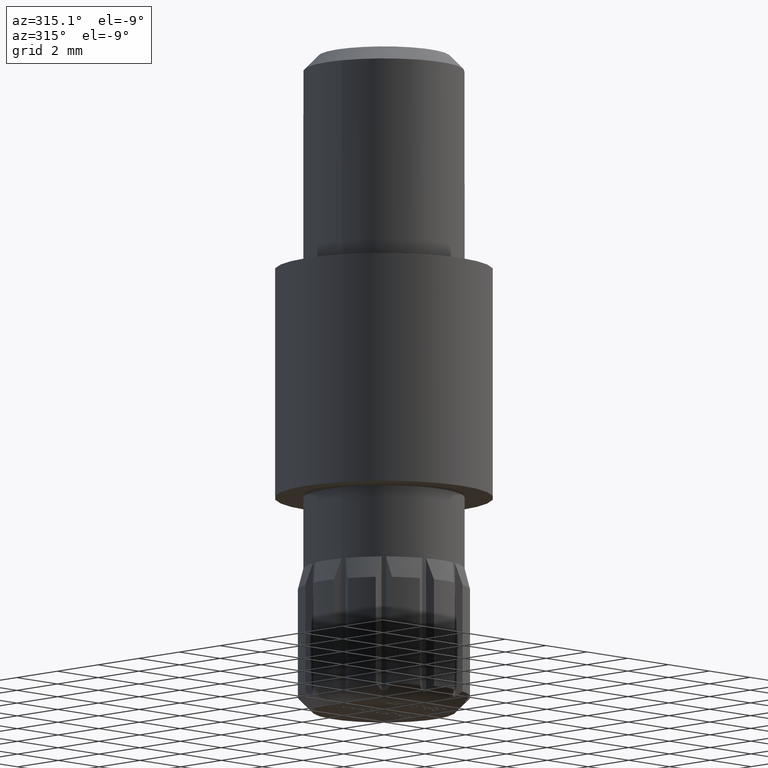
[diagram: clean part render]
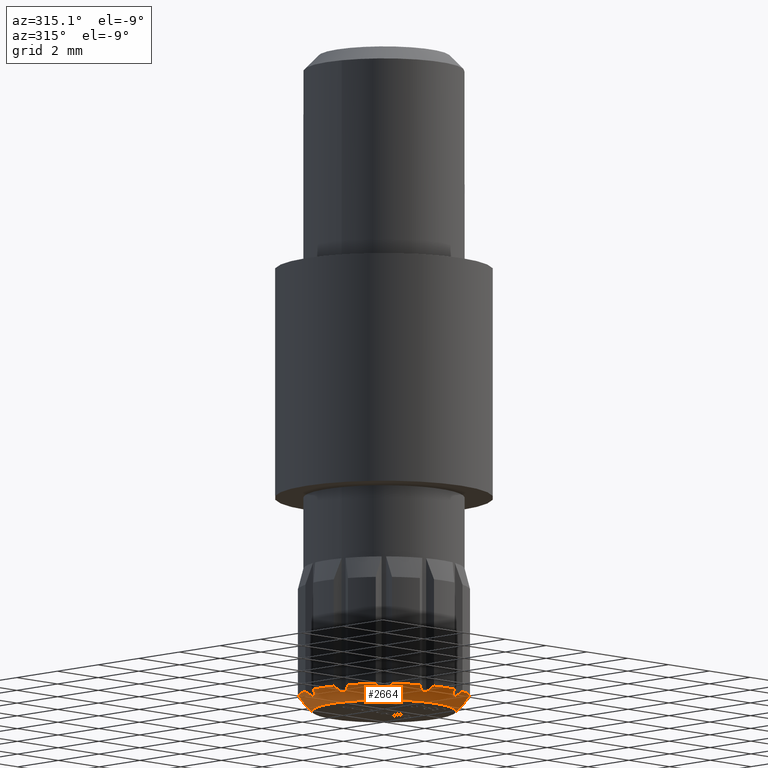
[diagram: same view with one face highlighted and labeled with its STEP entity id]
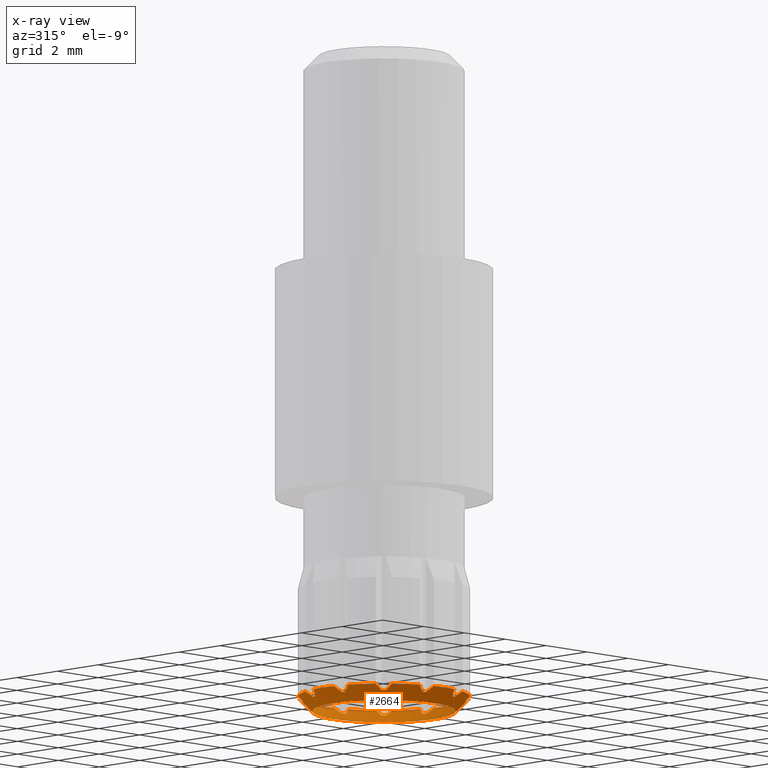
[diagram: x-ray of the same camera — body ghosted, the highlighted face saturated]
A machine part, auxiliary view. The second image highlights one B-rep face of the part: STEP entity #2664.
The next image is the same camera in x-ray: the body ghosted, the highlighted face saturated — about 4% of this face is hidden behind the body in this view.
In plain terms, the highlighted conical surface has half-angle 45 deg.
Its self-contained STEP definition (entity closure, byte-faithful):
#25 = DIRECTION ( 'NONE',  ( -1.000000000000000000, 0.000000000000000000, 0.000000000000000000 ) ) ;
#29 = DIRECTION ( 'NONE',  ( 0.000000000000000000, 0.000000000000000000, 1.000000000000000000 ) ) ;
#64 = DIRECTION ( 'NONE',  ( 1.000000000000000000, 0.000000000000000000, 0.000000000000000000 ) ) ;
#92 = DIRECTION ( 'NONE',  ( 0.000000000000000000, 0.000000000000000000, 1.000000000000000000 ) ) ;
#136 = VERTEX_POINT ( 'NONE', #895 ) ;
#138 = CARTESIAN_POINT ( 'NONE',  ( -2.311737691489917257, -1.912032647667102125, 0.4999999999999998890 ) ) ;
#161 = CARTESIAN_POINT ( 'NONE',  ( -2.033627779027435523, 1.924670895599541076, 0.2999999999999996003 ) ) ;
#266 = VERTEX_POINT ( 'NONE', #11072 ) ;
#322 = VERTEX_POINT ( 'NONE', #9102 ) ;
#369 = DIRECTION ( 'NONE',  ( -1.000000000000000000, 0.000000000000000000, 0.000000000000000000 ) ) ;
#397 = EDGE_CURVE ( 'NONE', #1567, #9420, #885, .T. ) ;
#400 = VERTEX_POINT ( 'NONE', #6396 ) ;
#423 = EDGE_CURVE ( 'NONE', #400, #7540, #1827, .T. ) ;
#450 = CIRCLE ( 'NONE', #11537, 3.000000000000000000 ) ;
#463 = FACE_BOUND ( 'NONE', #12906, .T. ) ;
#509 = EDGE_CURVE ( 'NONE', #10461, #1372, #7693, .T. ) ;
#510 = CARTESIAN_POINT ( 'NONE',  ( 2.033627779027463056, 1.924670895599512654, 0.2999999999999999334 ) ) ;
#549 = DIRECTION ( 'NONE',  ( -0.000000000000000000, -0.000000000000000000, -1.000000000000000000 ) ) ;
#563 = CARTESIAN_POINT ( 'NONE',  ( -1.924670895599533749, -2.033627779027442628, 0.2999999999999996003 ) ) ;
#607 = DIRECTION ( 'NONE',  ( -1.000000000000000000, 0.000000000000000000, 0.000000000000000000 ) ) ;
#622 = ORIENTED_EDGE ( 'NONE', *, *, #10093, .T. ) ;
#714 = AXIS2_PLACEMENT_3D ( 'NONE', #12992, #11049, #11124 ) ;
#739 = EDGE_CURVE ( 'NONE', #8307, #10461, #2856, .T. ) ;
#785 = FACE_OUTER_BOUND ( 'NONE', #1688, .T. ) ;
#793 = B_SPLINE_CURVE_WITH_KNOTS ( 'NONE', 3,
 ( #9524, #7482, #6362, #4479 ),
 .UNSPECIFIED., .F., .F.,
 ( 4, 4 ),
 ( 2.954317623281936935E-07, 0.0003430852342952688135 ),
 .UNSPECIFIED. ) ;
#805 = CARTESIAN_POINT ( 'NONE',  ( 0.000000000000000000, 0.000000000000000000, 0.2999999999999996003 ) ) ;
#813 = CARTESIAN_POINT ( 'NONE',  ( -1.924670895599491116, 2.033627779027482596, 0.2999999999999996003 ) ) ;
#839 = ORIENTED_EDGE ( 'NONE', *, *, #9663, .T. ) ;
#845 = VERTEX_POINT ( 'NONE', #8130 ) ;
#863 = EDGE_CURVE ( 'NONE', #1183, #9894, #2571, .T. ) ;
#885 = B_SPLINE_CURVE_WITH_KNOTS ( 'NONE', 3,
 ( #12447, #8409, #7388, #7219 ),
 .UNSPECIFIED., .F., .F.,
 ( 4, 4 ),
 ( 2.803256453689943402E-07, 0.0003430701281783228346 ),
 .UNSPECIFIED. ) ;
#895 = CARTESIAN_POINT ( 'NONE',  ( -0.5000000000000000000, 2.958039891549808065, 0.4999999999999998890 ) ) ;
#903 = CARTESIAN_POINT ( 'NONE',  ( 0.6500000000000000222, -2.723508766279264304, 0.2999999999999998779 ) ) ;
#950 = CARTESIAN_POINT ( 'NONE',  ( 2.726817915829766736, -0.8821669342688581716, 0.3651688080806906878 ) ) ;
#1033 = EDGE_CURVE ( 'NONE', #5716, #4518, #7728, .T. ) ;
#1046 = CARTESIAN_POINT ( 'NONE',  ( -0.9644935406565242619, -2.769488470846273476, 0.4319807832766577871 ) ) ;
#1114 = DIRECTION ( 'NONE',  ( -1.000000000000000000, 0.000000000000000000, 0.000000000000000000 ) ) ;
#1151 = ORIENTED_EDGE ( 'NONE', *, *, #3732, .T. ) ;
#1155 = ORIENTED_EDGE ( 'NONE', *, *, #6188, .T. ) ;
#1158 = CARTESIAN_POINT ( 'NONE',  ( -2.880694141569243527, 0.5494683274286409347, 0.4319807832766575650 ) ) ;
#1183 = VERTEX_POINT ( 'NONE', #10016 ) ;
#1185 = CARTESIAN_POINT ( 'NONE',  ( -2.802577053737547619, -0.5994299824593982695, 0.3651688080806903547 ) ) ;
#1201 = CARTESIAN_POINT ( 'NONE',  ( 0.4999999999999998890, 2.958039891549808953, 0.4999999999999998890 ) ) ;
#1229 = ORIENTED_EDGE ( 'NONE', *, *, #7664, .T. ) ;
#1264 = ORIENTED_EDGE ( 'NONE', *, *, #8324, .F. ) ;
#1278 = EDGE_CURVE ( 'NONE', #9568, #9212, #5376, .T. ) ;
#1294 = VERTEX_POINT ( 'NONE', #138 ) ;
#1301 = CARTESIAN_POINT ( 'NONE',  ( -2.683627779027448756, 0.7988378706797785167, 0.2999999999999998224 ) ) ;
#1305 = CARTESIAN_POINT ( 'NONE',  ( 0.000000000000000000, 0.000000000000000000, 0.4999999999999998890 ) ) ;
#1319 = AXIS2_PLACEMENT_3D ( 'NONE', #4536, #549, #4573 ) ;
#1327 = CARTESIAN_POINT ( 'NONE',  ( 2.311737691489891056, -1.912032647667133878, 0.4999999999999998890 ) ) ;
#1372 = VERTEX_POINT ( 'NONE', #6410 ) ;
#1382 = CARTESIAN_POINT ( 'NONE',  ( -0.7988378706797689688, -2.683627779027451865, 0.3000000000000002109 ) ) ;
#1457 = ORIENTED_EDGE ( 'NONE', *, *, #11759, .T. ) ;
#1567 = VERTEX_POINT ( 'NONE', #11879 ) ;
#1604 = CARTESIAN_POINT ( 'NONE',  ( 2.802577053737543622, 0.5994299824594178094, 0.3651688080806900771 ) ) ;
#1627 = CARTESIAN_POINT ( 'NONE',  ( 0.000000000000000000, 0.000000000000000000, 0.4999999999999998890 ) ) ;
#1628 = VERTEX_POINT ( 'NONE', #10433 ) ;
#1688 = EDGE_LOOP ( 'NONE', ( #4123, #8915, #2961, #10335, #1457, #1264, #2168, #1155, #622, #5712, #3045, #10831, #1229, #6711, #8760, #12933, #6948, #4449, #12082, #3360, #11396, #7422, #7980, #10645, #4058, #4902, #11179, #6736, #12927, #10010, #5581, #5202, #6307, #5379, #2180, #8973, #1775, #7531, #7360, #12801, #1151, #3012, #3680, #10364, #12742, #9874, #9235, #839 ) ) ;
#1730 = EDGE_CURVE ( 'NONE', #12413, #4518, #3264, .T. ) ;
#1740 = EDGE_CURVE ( 'NONE', #7067, #1628, #7870, .T. ) ;
#1751 = VERTEX_POINT ( 'NONE', #6315 ) ;
#1755 = CARTESIAN_POINT ( 'NONE',  ( 2.769488470846283690, 0.9644935406564953961, 0.4319807832766576761 ) ) ;
#1775 = ORIENTED_EDGE ( 'NONE', *, *, #1278, .T. ) ;
#1800 = EDGE_CURVE ( 'NONE', #4689, #9440, #12210, .T. ) ;
#1827 = B_SPLINE_CURVE_WITH_KNOTS ( 'NONE', 3,
 ( #7307, #1185, #5222, #8318 ),
 .UNSPECIFIED., .F., .F.,
 ( 4, 4 ),
 ( 2.889840042084965281E-07, 0.0003430787865371480450 ),
 .UNSPECIFIED. ) ;
#1830 = EDGE_CURVE ( 'NONE', #3579, #136, #2165, .T. ) ;
#1863 = CARTESIAN_POINT ( 'NONE',  ( -2.958039891549802736, 0.5000000000000307532, 0.4999999999999998890 ) ) ;
#1890 = VERTEX_POINT ( 'NONE', #12823 ) ;
#1914 = CARTESIAN_POINT ( 'NONE',  ( 1.916200600912734808, -2.220020143417681613, 0.4319807832766577316 ) ) ;
#1967 = DIRECTION ( 'NONE',  ( -1.000000000000000000, 0.000000000000000000, 0.000000000000000000 ) ) ;
#1983 = CARTESIAN_POINT ( 'NONE',  ( -2.723508766279257198, 0.6500000000000284439, 0.2999999999999996003 ) ) ;
#1991 = DIRECTION ( 'NONE',  ( 0.000000000000000000, 0.000000000000000000, 1.000000000000000000 ) ) ;
#2043 = CARTESIAN_POINT ( 'NONE',  ( 0.9644935406565046110, 2.769488470846280137, 0.4319807832766576206 ) ) ;
#2106 = DIRECTION ( 'NONE',  ( 1.000000000000000000, 0.000000000000000000, 0.000000000000000000 ) ) ;
#2120 = DIRECTION ( 'NONE',  ( -1.000000000000000000, 0.000000000000000000, 0.000000000000000000 ) ) ;
#2154 = EDGE_CURVE ( 'NONE', #845, #845, #12317, .T. ) ;
#2157 = AXIS2_PLACEMENT_3D ( 'NONE', #10137, #7941, #4139 ) ;
#2158 = CIRCLE ( 'NONE', #12566, 2.799999999999999822 ) ;
#2165 = B_SPLINE_CURVE_WITH_KNOTS ( 'NONE', 3,
 ( #3624, #2563, #3578, #5647 ),
 .UNSPECIFIED., .F., .F.,
 ( 4, 4 ),
 ( 2.889840042080258425E-07, 0.0003430787865371479365 ),
 .UNSPECIFIED. ) ;
#2168 = ORIENTED_EDGE ( 'NONE', *, *, #5340, .T. ) ;
#2170 = CARTESIAN_POINT ( 'NONE',  ( 1.916200600912750351, 2.220020143417667402, 0.4319807832766578426 ) ) ;
#2180 = ORIENTED_EDGE ( 'NONE', *, *, #423, .T. ) ;
#2187 = CARTESIAN_POINT ( 'NONE',  ( -0.7988378706797126805, 2.683627779027468296, 0.2999999999999998224 ) ) ;
#2198 = CARTESIAN_POINT ( 'NONE',  ( -0.6499999999999999112, -2.723508766279263860, 0.2999999999999996003 ) ) ;
#2287 = CIRCLE ( 'NONE', #4077, 3.000000000000000000 ) ;
#2307 = CIRCLE ( 'NONE', #1319, 3.000000000000000000 ) ;
#2403 = AXIS2_PLACEMENT_3D ( 'NONE', #4198, #8133, #2120 ) ;
#2471 = CARTESIAN_POINT ( 'NONE',  ( -0.5994299824594278014, -2.802577053737541402, 0.3651688080806904102 ) ) ;
#2474 = CIRCLE ( 'NONE', #3535, 3.000000000000000000 ) ;
#2491 = VERTEX_POINT ( 'NONE', #510 ) ;
#2549 = CARTESIAN_POINT ( 'NONE',  ( 0.000000000000000000, 0.000000000000000000, 0.2999999999999996003 ) ) ;
#2563 = CARTESIAN_POINT ( 'NONE',  ( -0.5994299824594279125, 2.802577053737540957, 0.3651688080806900771 ) ) ;
#2571 = B_SPLINE_CURVE_WITH_KNOTS ( 'NONE', 3,
 ( #9603, #12693, #12519, #563 ),
 .UNSPECIFIED., .F., .F.,
 ( 4, 4 ),
 ( 2.491383796159258994E-07, 0.0003430389409125962543 ),
 .UNSPECIFIED. ) ;
#2608 = CARTESIAN_POINT ( 'NONE',  ( 0.8821669342688298610, -2.726817915829775618, 0.3651688080806902437 ) ) ;
#2651 = CARTESIAN_POINT ( 'NONE',  ( 2.958039891549809841, 0.4999999999999893974, 0.4999999999999998890 ) ) ;
#2655 = EDGE_CURVE ( 'NONE', #9440, #6277, #11665, .T. ) ;
#2664 = ADVANCED_FACE ( 'NONE', ( #785, #463 ), #5974, .T. ) ;
#2699 = AXIS2_PLACEMENT_3D ( 'NONE', #7069, #1991, #11133 ) ;
#2702 = ORIENTED_EDGE ( 'NONE', *, *, #2154, .F. ) ;
#2712 = VERTEX_POINT ( 'NONE', #1201 ) ;
#2782 = VERTEX_POINT ( 'NONE', #4354 ) ;
#2856 = CIRCLE ( 'NONE', #2403, 3.000000000000000000 ) ;
#2886 = CARTESIAN_POINT ( 'NONE',  ( 2.683627779027459859, 0.7988378706797408801, 0.2999999999999996003 ) ) ;
#2890 = CARTESIAN_POINT ( 'NONE',  ( -1.920410119468668242, 2.127387933370367357, 0.3651688080806900216 ) ) ;
#2961 = ORIENTED_EDGE ( 'NONE', *, *, #5410, .T. ) ;
#3012 = ORIENTED_EDGE ( 'NONE', *, *, #6754, .F. ) ;
#3027 = AXIS2_PLACEMENT_3D ( 'NONE', #805, #5874, #3713 ) ;
#3045 = ORIENTED_EDGE ( 'NONE', *, *, #1800, .T. ) ;
#3093 = CARTESIAN_POINT ( 'NONE',  ( 1.912032647667126106, 2.311737691489897273, 0.4999999999999998890 ) ) ;
#3117 = CARTESIAN_POINT ( 'NONE',  ( 0.000000000000000000, 0.000000000000000000, 0.2999999999999996003 ) ) ;
#3259 = CIRCLE ( 'NONE', #4211, 2.799999999999999822 ) ;
#3264 = B_SPLINE_CURVE_WITH_KNOTS ( 'NONE', 3,
 ( #1327, #5343, #12399, #8369 ),
 .UNSPECIFIED., .F., .F.,
 ( 4, 4 ),
 ( 2.491383796164675240E-07, 0.0003430389409125971759 ),
 .UNSPECIFIED. ) ;
#3360 = ORIENTED_EDGE ( 'NONE', *, *, #739, .T. ) ;
#3374 = EDGE_CURVE ( 'NONE', #10664, #1183, #450, .T. ) ;
#3396 = AXIS2_PLACEMENT_3D ( 'NONE', #1627, #9669, #5546 ) ;
#3471 = CARTESIAN_POINT ( 'NONE',  ( -2.311737691489917257, -1.912032647667102125, 0.4999999999999998890 ) ) ;
#3497 = VERTEX_POINT ( 'NONE', #1382 ) ;
#3535 = AXIS2_PLACEMENT_3D ( 'NONE', #10814, #5850, #607 ) ;
#3578 = CARTESIAN_POINT ( 'NONE',  ( -0.5494683274286112917, 2.880694141569248856, 0.4319807832766576761 ) ) ;
#3579 = VERTEX_POINT ( 'NONE', #8627 ) ;
#3624 = CARTESIAN_POINT ( 'NONE',  ( -0.6499999999999999112, 2.723508766279263860, 0.2999999999999996003 ) ) ;
#3643 = AXIS2_PLACEMENT_3D ( 'NONE', #1305, #4281, #369 ) ;
#3671 = CARTESIAN_POINT ( 'NONE',  ( -1.046007243882648874, 2.811737691489913260, 0.4999999999999998890 ) ) ;
#3680 = ORIENTED_EDGE ( 'NONE', *, *, #4973, .T. ) ;
#3699 = AXIS2_PLACEMENT_3D ( 'NONE', #2549, #4464, #9596 ) ;
#3713 = DIRECTION ( 'NONE',  ( 1.000000000000000000, 0.000000000000000000, 0.000000000000000000 ) ) ;
#3732 = EDGE_CURVE ( 'NONE', #9662, #9634, #7292, .T. ) ;
#3750 = DIRECTION ( 'NONE',  ( 0.000000000000000000, 0.000000000000000000, 1.000000000000000000 ) ) ;
#3812 = CARTESIAN_POINT ( 'NONE',  ( 2.726817915829772065, 0.8821669342688396309, 0.3651688080806902437 ) ) ;
#3821 = EDGE_CURVE ( 'NONE', #9432, #10392, #9315, .T. ) ;
#3865 = CARTESIAN_POINT ( 'NONE',  ( -1.912032647667093910, 2.311737691489923918, 0.4999999999999998890 ) ) ;
#3897 = CARTESIAN_POINT ( 'NONE',  ( 0.7988378706797500950, 2.683627779027457194, 0.2999999999999997669 ) ) ;
#3964 = VERTEX_POINT ( 'NONE', #2187 ) ;
#3976 = CARTESIAN_POINT ( 'NONE',  ( 1.924670895599519538, 2.033627779027455507, 0.2999999999999996003 ) ) ;
#4024 = CARTESIAN_POINT ( 'NONE',  ( 0.000000000000000000, 0.000000000000000000, 0.4999999999999998890 ) ) ;
#4032 = CARTESIAN_POINT ( 'NONE',  ( -0.7988378706797689688, -2.683627779027451865, 0.3000000000000002109 ) ) ;
#4054 = CARTESIAN_POINT ( 'NONE',  ( 2.723508766279266524, 0.6499999999999904743, 0.2999999999999997113 ) ) ;
#4058 = ORIENTED_EDGE ( 'NONE', *, *, #6082, .T. ) ;
#4077 = AXIS2_PLACEMENT_3D ( 'NONE', #7912, #12904, #4900 ) ;
#4109 = B_SPLINE_CURVE_WITH_KNOTS ( 'NONE', 3,
 ( #1301, #4407, #6286, #8338 ),
 .UNSPECIFIED., .F., .F.,
 ( 4, 4 ),
 ( 2.742078407103692283E-07, 0.0003430640103736634292 ),
 .UNSPECIFIED. ) ;
#4115 = CARTESIAN_POINT ( 'NONE',  ( 0.000000000000000000, 0.000000000000000000, 0.2999999999999996003 ) ) ;
#4123 = ORIENTED_EDGE ( 'NONE', *, *, #9989, .T. ) ;
#4139 = DIRECTION ( 'NONE',  ( 1.000000000000000000, 0.000000000000000000, 0.000000000000000000 ) ) ;
#4154 = CARTESIAN_POINT ( 'NONE',  ( 0.000000000000000000, 0.000000000000000000, -1.169278378903498267E-16 ) ) ;
#4198 = CARTESIAN_POINT ( 'NONE',  ( 0.000000000000000000, 0.000000000000000000, 0.4999999999999998890 ) ) ;
#4206 = CIRCLE ( 'NONE', #5428, 3.000000000000000000 ) ;
#4211 = AXIS2_PLACEMENT_3D ( 'NONE', #7681, #11767, #4807 ) ;
#4239 = DIRECTION ( 'NONE',  ( -0.000000000000000000, -0.000000000000000000, -1.000000000000000000 ) ) ;
#4244 = CARTESIAN_POINT ( 'NONE',  ( -2.958039891549813838, -0.4999999999999698574, 0.4999999999999998890 ) ) ;
#4281 = DIRECTION ( 'NONE',  ( -0.000000000000000000, -0.000000000000000000, -1.000000000000000000 ) ) ;
#4341 = CARTESIAN_POINT ( 'NONE',  ( 0.5000000000000000000, -2.958039891549808065, 0.4999999999999998890 ) ) ;
#4354 = CARTESIAN_POINT ( 'NONE',  ( 2.683627779027459859, 0.7988378706797408801, 0.2999999999999996003 ) ) ;
#4364 = CIRCLE ( 'NONE', #6983, 2.799999999999999822 ) ;
#4407 = CARTESIAN_POINT ( 'NONE',  ( -2.726817915829760075, 0.8821669342688776005, 0.3651688080806905212 ) ) ;
#4418 = CARTESIAN_POINT ( 'NONE',  ( 1.912032647667110119, -2.311737691489910596, 0.4999999999999998890 ) ) ;
#4449 = ORIENTED_EDGE ( 'NONE', *, *, #1033, .F. ) ;
#4464 = DIRECTION ( 'NONE',  ( 0.000000000000000000, 0.000000000000000000, 1.000000000000000000 ) ) ;
#4479 = CARTESIAN_POINT ( 'NONE',  ( 2.723508766279261639, -0.6500000000000093481, 0.2999999999999996003 ) ) ;
#4511 = CIRCLE ( 'NONE', #3699, 2.799999999999999822 ) ;
#4518 = VERTEX_POINT ( 'NONE', #7379 ) ;
#4536 = CARTESIAN_POINT ( 'NONE',  ( 0.000000000000000000, 0.000000000000000000, 0.4999999999999998890 ) ) ;
#4553 = CIRCLE ( 'NONE', #714, 2.799999999999999822 ) ;
#4557 = CARTESIAN_POINT ( 'NONE',  ( 2.811737691489895052, -1.046007243882697058, 0.4999999999999998890 ) ) ;
#4573 = DIRECTION ( 'NONE',  ( -1.000000000000000000, 0.000000000000000000, 0.000000000000000000 ) ) ;
#4616 = CARTESIAN_POINT ( 'NONE',  ( 0.000000000000000000, 0.000000000000000000, 0.2999999999999996003 ) ) ;
#4618 = CARTESIAN_POINT ( 'NONE',  ( -0.9644935406564661973, 2.769488470846293460, 0.4319807832766580646 ) ) ;
#4672 = EDGE_CURVE ( 'NONE', #4689, #2782, #4553, .T. ) ;
#4689 = VERTEX_POINT ( 'NONE', #4054 ) ;
#4746 = VERTEX_POINT ( 'NONE', #5069 ) ;
#4770 = CARTESIAN_POINT ( 'NONE',  ( 1.924670895599505327, -2.033627779027469273, 0.2999999999999997669 ) ) ;
#4807 = DIRECTION ( 'NONE',  ( 1.000000000000000000, 0.000000000000000000, 0.000000000000000000 ) ) ;
#4816 = CARTESIAN_POINT ( 'NONE',  ( 2.958039891549809841, 0.4999999999999893974, 0.4999999999999998890 ) ) ;
#4886 = AXIS2_PLACEMENT_3D ( 'NONE', #7237, #12198, #1114 ) ;
#4900 = DIRECTION ( 'NONE',  ( -1.000000000000000000, 0.000000000000000000, 0.000000000000000000 ) ) ;
#4902 = ORIENTED_EDGE ( 'NONE', *, *, #6203, .F. ) ;
#4973 = EDGE_CURVE ( 'NONE', #10033, #5364, #7555, .T. ) ;
#5043 = CARTESIAN_POINT ( 'NONE',  ( -0.8821669342688681636, -2.726817915829763628, 0.3651688080806905767 ) ) ;
#5069 = CARTESIAN_POINT ( 'NONE',  ( -2.033627779027476379, -1.924670895599498444, 0.2999999999999999334 ) ) ;
#5202 = ORIENTED_EDGE ( 'NONE', *, *, #9546, .T. ) ;
#5222 = CARTESIAN_POINT ( 'NONE',  ( -2.880694141569255073, -0.5494683274285809826, 0.4319807832766578426 ) ) ;
#5297 = CARTESIAN_POINT ( 'NONE',  ( 1.046007243882687288, 2.811737691489899049, 0.4999999999999998890 ) ) ;
#5340 = EDGE_CURVE ( 'NONE', #2491, #1751, #9508, .T. ) ;
#5343 = CARTESIAN_POINT ( 'NONE',  ( 2.220020143417661629, -1.916200600912758123, 0.4319807832766582312 ) ) ;
#5364 = VERTEX_POINT ( 'NONE', #11420 ) ;
#5374 = CARTESIAN_POINT ( 'NONE',  ( 2.683627779027454974, -0.7988378706797596429, 0.3000000000000002665 ) ) ;
#5376 = B_SPLINE_CURVE_WITH_KNOTS ( 'NONE', 3,
 ( #9252, #1158, #8385, #10312 ),
 .UNSPECIFIED., .F., .F.,
 ( 4, 4 ),
 ( 2.954317623288225096E-07, 0.0003430852342952688677 ),
 .UNSPECIFIED. ) ;
#5379 = ORIENTED_EDGE ( 'NONE', *, *, #9488, .F. ) ;
#5410 = EDGE_CURVE ( 'NONE', #7067, #1890, #12561, .T. ) ;
#5428 = AXIS2_PLACEMENT_3D ( 'NONE', #5580, #8557, #9586 ) ;
#5460 = CARTESIAN_POINT ( 'NONE',  ( -2.311737691489876845, 1.912032647667150087, 0.4999999999999998890 ) ) ;
#5516 = CARTESIAN_POINT ( 'NONE',  ( 0.000000000000000000, 0.000000000000000000, 0.2999999999999996003 ) ) ;
#5522 = CARTESIAN_POINT ( 'NONE',  ( 0.9644935406564856262, -2.769488470846286798, 0.4319807832766576206 ) ) ;
#5539 = CARTESIAN_POINT ( 'NONE',  ( -1.046007243882648874, 2.811737691489913260, 0.4999999999999998890 ) ) ;
#5546 = DIRECTION ( 'NONE',  ( -1.000000000000000000, 0.000000000000000000, 0.000000000000000000 ) ) ;
#5580 = CARTESIAN_POINT ( 'NONE',  ( 0.000000000000000000, 0.000000000000000000, 0.4999999999999998890 ) ) ;
#5581 = ORIENTED_EDGE ( 'NONE', *, *, #8773, .T. ) ;
#5614 = AXIS2_PLACEMENT_3D ( 'NONE', #9975, #11937, #8850 ) ;
#5647 = CARTESIAN_POINT ( 'NONE',  ( -0.5000000000000000000, 2.958039891549808065, 0.4999999999999998890 ) ) ;
#5694 = CARTESIAN_POINT ( 'NONE',  ( 1.924670895599505327, -2.033627779027469273, 0.2999999999999997669 ) ) ;
#5696 = VERTEX_POINT ( 'NONE', #3671 ) ;
#5712 = ORIENTED_EDGE ( 'NONE', *, *, #4672, .F. ) ;
#5716 = VERTEX_POINT ( 'NONE', #5694 ) ;
#5850 = DIRECTION ( 'NONE',  ( -0.000000000000000000, -0.000000000000000000, -1.000000000000000000 ) ) ;
#5874 = DIRECTION ( 'NONE',  ( 0.000000000000000000, 0.000000000000000000, 1.000000000000000000 ) ) ;
#5900 = CIRCLE ( 'NONE', #2699, 2.799999999999999822 ) ;
#5927 = EDGE_CURVE ( 'NONE', #3497, #10664, #8106, .T. ) ;
#5963 = DIRECTION ( 'NONE',  ( -1.000000000000000000, 0.000000000000000000, 0.000000000000000000 ) ) ;
#5964 = AXIS2_PLACEMENT_3D ( 'NONE', #4024, #12123, #25 ) ;
#5974 = CONICAL_SURFACE ( 'NONE', #2157, 3.000000000000000000, 0.7853981633974479459 ) ;
#6043 = B_SPLINE_CURVE_WITH_KNOTS ( 'NONE', 3,
 ( #3093, #2170, #6349, #7380 ),
 .UNSPECIFIED., .F., .F.,
 ( 4, 4 ),
 ( 2.491383796159258994E-07, 0.0003430389409125966880 ),
 .UNSPECIFIED. ) ;
#6082 = EDGE_CURVE ( 'NONE', #266, #6320, #7175, .T. ) ;
#6086 = EDGE_CURVE ( 'NONE', #4746, #9894, #2158, .T. ) ;
#6101 = DIRECTION ( 'NONE',  ( -0.000000000000000000, -0.000000000000000000, -1.000000000000000000 ) ) ;
#6188 = EDGE_CURVE ( 'NONE', #1751, #7702, #2474, .T. ) ;
#6203 = EDGE_CURVE ( 'NONE', #3497, #6320, #3259, .T. ) ;
#6263 = EDGE_CURVE ( 'NONE', #11335, #10588, #12868, .T. ) ;
#6277 = VERTEX_POINT ( 'NONE', #8900 ) ;
#6286 = CARTESIAN_POINT ( 'NONE',  ( -2.769488470846269923, 0.9644935406565338099, 0.4319807832766576761 ) ) ;
#6307 = ORIENTED_EDGE ( 'NONE', *, *, #397, .T. ) ;
#6315 = CARTESIAN_POINT ( 'NONE',  ( 2.311737691489904378, 1.912032647667118335, 0.4999999999999998890 ) ) ;
#6320 = VERTEX_POINT ( 'NONE', #2198 ) ;
#6349 = CARTESIAN_POINT ( 'NONE',  ( 1.920410119468698218, 2.127387933370340267, 0.3651688080806899661 ) ) ;
#6362 = CARTESIAN_POINT ( 'NONE',  ( 2.802577053737539181, -0.5994299824594375714, 0.3651688080806904657 ) ) ;
#6364 = CARTESIAN_POINT ( 'NONE',  ( 2.033627779027463056, 1.924670895599512654, 0.2999999999999999334 ) ) ;
#6396 = CARTESIAN_POINT ( 'NONE',  ( -2.723508766279271409, -0.6499999999999714895, 0.2999999999999998779 ) ) ;
#6410 = CARTESIAN_POINT ( 'NONE',  ( 0.7988378706797313322, -2.683627779027462523, 0.2999999999999996003 ) ) ;
#6456 = AXIS2_PLACEMENT_3D ( 'NONE', #10475, #7480, #8496 ) ;
#6488 = CARTESIAN_POINT ( 'NONE',  ( 2.311737691489904378, 1.912032647667118335, 0.4999999999999998890 ) ) ;
#6523 = CARTESIAN_POINT ( 'NONE',  ( 0.7988378706797313322, -2.683627779027462523, 0.2999999999999996003 ) ) ;
#6540 = EDGE_CURVE ( 'NONE', #7540, #9568, #2307, .T. ) ;
#6568 = CARTESIAN_POINT ( 'NONE',  ( 1.912032647667126106, 2.311737691489897273, 0.4999999999999998890 ) ) ;
#6589 = CARTESIAN_POINT ( 'NONE',  ( 0.6499999999999999112, 2.723508766279263860, 0.2999999999999996003 ) ) ;
#6601 = DIRECTION ( 'NONE',  ( 1.000000000000000000, 0.000000000000000000, 0.000000000000000000 ) ) ;
#6623 = CARTESIAN_POINT ( 'NONE',  ( -2.033627779027476379, -1.924670895599498444, 0.2999999999999999334 ) ) ;
#6711 = ORIENTED_EDGE ( 'NONE', *, *, #7502, .F. ) ;
#6736 = ORIENTED_EDGE ( 'NONE', *, *, #3374, .T. ) ;
#6754 = EDGE_CURVE ( 'NONE', #10033, #9634, #7647, .T. ) ;
#6829 = CARTESIAN_POINT ( 'NONE',  ( 0.5994299824594276904, -2.802577053737540957, 0.3651688080806902992 ) ) ;
#6899 = DIRECTION ( 'NONE',  ( 1.000000000000000000, 0.000000000000000000, 0.000000000000000000 ) ) ;
#6919 = EDGE_CURVE ( 'NONE', #12166, #9212, #4364, .T. ) ;
#6948 = ORIENTED_EDGE ( 'NONE', *, *, #1730, .T. ) ;
#6983 = AXIS2_PLACEMENT_3D ( 'NONE', #4616, #11658, #8555 ) ;
#7067 = VERTEX_POINT ( 'NONE', #7627 ) ;
#7069 = CARTESIAN_POINT ( 'NONE',  ( 0.000000000000000000, 0.000000000000000000, 0.2999999999999996003 ) ) ;
#7090 = EDGE_CURVE ( 'NONE', #3579, #3964, #12084, .T. ) ;
#7092 = DIRECTION ( 'NONE',  ( -1.000000000000000000, 0.000000000000000000, 0.000000000000000000 ) ) ;
#7175 = B_SPLINE_CURVE_WITH_KNOTS ( 'NONE', 3,
 ( #12610, #10468, #2471, #10644 ),
 .UNSPECIFIED., .F., .F.,
 ( 4, 4 ),
 ( 2.954317623281304308E-07, 0.0003430852342952685425 ),
 .UNSPECIFIED. ) ;
#7219 = CARTESIAN_POINT ( 'NONE',  ( -2.683627779027465632, -0.7988378706797221174, 0.2999999999999996003 ) ) ;
#7237 = CARTESIAN_POINT ( 'NONE',  ( 0.000000000000000000, 0.000000000000000000, 0.4999999999999998890 ) ) ;
#7292 = B_SPLINE_CURVE_WITH_KNOTS ( 'NONE', 3,
 ( #11411, #10288, #12308, #161 ),
 .UNSPECIFIED., .F., .F.,
 ( 4, 4 ),
 ( 2.491383796164042612E-07, 0.0003430389409125965254 ),
 .UNSPECIFIED. ) ;
#7296 = CIRCLE ( 'NONE', #4886, 3.000000000000000000 ) ;
#7300 = CARTESIAN_POINT ( 'NONE',  ( 2.311737691489891056, -1.912032647667133878, 0.4999999999999998890 ) ) ;
#7307 = CARTESIAN_POINT ( 'NONE',  ( -2.723508766279271409, -0.6499999999999714895, 0.2999999999999998779 ) ) ;
#7360 = ORIENTED_EDGE ( 'NONE', *, *, #10821, .T. ) ;
#7379 = CARTESIAN_POINT ( 'NONE',  ( 2.033627779027448845, -1.924670895599526865, 0.2999999999999996003 ) ) ;
#7380 = CARTESIAN_POINT ( 'NONE',  ( 1.924670895599519538, 2.033627779027455507, 0.2999999999999996003 ) ) ;
#7388 = CARTESIAN_POINT ( 'NONE',  ( -2.726817915829778727, -0.8821669342688205351, 0.3651688080806901882 ) ) ;
#7392 = CARTESIAN_POINT ( 'NONE',  ( 2.127387933370347373, 1.920410119468690668, 0.3651688080806906322 ) ) ;
#7422 = ORIENTED_EDGE ( 'NONE', *, *, #8212, .F. ) ;
#7477 = CIRCLE ( 'NONE', #11068, 2.799999999999999822 ) ;
#7480 = DIRECTION ( 'NONE',  ( 0.000000000000000000, 0.000000000000000000, 1.000000000000000000 ) ) ;
#7482 = CARTESIAN_POINT ( 'NONE',  ( 2.880694141569247524, -0.5494683274286209507, 0.4319807832766580646 ) ) ;
#7502 = EDGE_CURVE ( 'NONE', #11335, #7710, #9690, .T. ) ;
#7531 = ORIENTED_EDGE ( 'NONE', *, *, #6919, .F. ) ;
#7537 = CARTESIAN_POINT ( 'NONE',  ( -2.220020143417687830, -1.916200600912727259, 0.4319807832766577316 ) ) ;
#7540 = VERTEX_POINT ( 'NONE', #4244 ) ;
#7555 = B_SPLINE_CURVE_WITH_KNOTS ( 'NONE', 3,
 ( #9833, #2890, #9877, #3865 ),
 .UNSPECIFIED., .F., .F.,
 ( 4, 4 ),
 ( 2.437016887059737188E-07, 0.0003430335042216859634 ),
 .UNSPECIFIED. ) ;
#7603 = EDGE_CURVE ( 'NONE', #10588, #12413, #10958, .T. ) ;
#7609 = CARTESIAN_POINT ( 'NONE',  ( 1.046007243882668414, -2.811737691489906155, 0.4999999999999998890 ) ) ;
#7627 = CARTESIAN_POINT ( 'NONE',  ( 0.7988378706797500950, 2.683627779027457194, 0.2999999999999997669 ) ) ;
#7647 = CIRCLE ( 'NONE', #10355, 2.799999999999999822 ) ;
#7664 = EDGE_CURVE ( 'NONE', #6277, #7710, #793, .T. ) ;
#7681 = CARTESIAN_POINT ( 'NONE',  ( 0.000000000000000000, 0.000000000000000000, 0.2999999999999996003 ) ) ;
#7693 = B_SPLINE_CURVE_WITH_KNOTS ( 'NONE', 3,
 ( #11558, #5522, #2608, #6523 ),
 .UNSPECIFIED., .F., .F.,
 ( 4, 4 ),
 ( 2.803256453694392972E-07, 0.0003430701281783235935 ),
 .UNSPECIFIED. ) ;
#7702 = VERTEX_POINT ( 'NONE', #8370 ) ;
#7710 = VERTEX_POINT ( 'NONE', #11515 ) ;
#7728 = CIRCLE ( 'NONE', #5614, 2.799999999999999822 ) ;
#7870 = CIRCLE ( 'NONE', #6456, 2.799999999999999822 ) ;
#7890 = CARTESIAN_POINT ( 'NONE',  ( 0.5000000000000000000, -2.958039891549808065, 0.4999999999999998890 ) ) ;
#7912 = CARTESIAN_POINT ( 'NONE',  ( 0.000000000000000000, 0.000000000000000000, 0.4999999999999998890 ) ) ;
#7917 = CARTESIAN_POINT ( 'NONE',  ( 1.920410119468683119, -2.127387933370354034, 0.3651688080806902992 ) ) ;
#7941 = DIRECTION ( 'NONE',  ( 0.000000000000000000, 0.000000000000000000, 1.000000000000000000 ) ) ;
#7950 = CARTESIAN_POINT ( 'NONE',  ( 2.683627779027454974, -0.7988378706797596429, 0.3000000000000002665 ) ) ;
#7980 = ORIENTED_EDGE ( 'NONE', *, *, #3821, .T. ) ;
#7995 = CARTESIAN_POINT ( 'NONE',  ( 2.811737691489895052, -1.046007243882697058, 0.4999999999999998890 ) ) ;
#8106 = B_SPLINE_CURVE_WITH_KNOTS ( 'NONE', 3,
 ( #4032, #5043, #1046, #10116 ),
 .UNSPECIFIED., .F., .F.,
 ( 4, 4 ),
 ( 2.742078407102277738E-07, 0.0003430640103736633749 ),
 .UNSPECIFIED. ) ;
#8111 = CARTESIAN_POINT ( 'NONE',  ( 0.000000000000000000, 0.000000000000000000, 0.4999999999999998890 ) ) ;
#8122 = EDGE_CURVE ( 'NONE', #322, #9662, #9188, .T. ) ;
#8130 = CARTESIAN_POINT ( 'NONE',  ( -2.500000000000000444, 0.000000000000000000, -1.169278378903498267E-16 ) ) ;
#8133 = DIRECTION ( 'NONE',  ( -0.000000000000000000, -0.000000000000000000, -1.000000000000000000 ) ) ;
#8212 = EDGE_CURVE ( 'NONE', #9432, #1372, #5900, .T. ) ;
#8307 = VERTEX_POINT ( 'NONE', #4418 ) ;
#8318 = CARTESIAN_POINT ( 'NONE',  ( -2.958039891549813838, -0.4999999999999698574, 0.4999999999999998890 ) ) ;
#8324 = EDGE_CURVE ( 'NONE', #2491, #9549, #4511, .T. ) ;
#8338 = CARTESIAN_POINT ( 'NONE',  ( -2.811737691489887947, 1.046007243882717042, 0.4999999999999998890 ) ) ;
#8369 = CARTESIAN_POINT ( 'NONE',  ( 2.033627779027448845, -1.924670895599526865, 0.2999999999999996003 ) ) ;
#8370 = CARTESIAN_POINT ( 'NONE',  ( 2.811737691489902158, 1.046007243882678406, 0.4999999999999998890 ) ) ;
#8385 = CARTESIAN_POINT ( 'NONE',  ( -2.802577053737534740, 0.5994299824594572224, 0.3651688080806904102 ) ) ;
#8409 = CARTESIAN_POINT ( 'NONE',  ( -2.769488470846289907, -0.9644935406564758562, 0.4319807832766579536 ) ) ;
#8415 = CARTESIAN_POINT ( 'NONE',  ( 2.220020143417674952, 1.916200600912742358, 0.4319807832766579536 ) ) ;
#8496 = DIRECTION ( 'NONE',  ( 1.000000000000000000, 0.000000000000000000, 0.000000000000000000 ) ) ;
#8535 = DIRECTION ( 'NONE',  ( 0.000000000000000000, 0.000000000000000000, 1.000000000000000000 ) ) ;
#8555 = DIRECTION ( 'NONE',  ( 1.000000000000000000, 0.000000000000000000, 0.000000000000000000 ) ) ;
#8557 = DIRECTION ( 'NONE',  ( -0.000000000000000000, -0.000000000000000000, -1.000000000000000000 ) ) ;
#8627 = CARTESIAN_POINT ( 'NONE',  ( -0.6499999999999999112, 2.723508766279263860, 0.2999999999999996003 ) ) ;
#8758 = EDGE_CURVE ( 'NONE', #5364, #5696, #4206, .T. ) ;
#8760 = ORIENTED_EDGE ( 'NONE', *, *, #6263, .T. ) ;
#8773 = EDGE_CURVE ( 'NONE', #4746, #1294, #8954, .T. ) ;
#8850 = DIRECTION ( 'NONE',  ( 1.000000000000000000, 0.000000000000000000, 0.000000000000000000 ) ) ;
#8855 = EDGE_CURVE ( 'NONE', #5696, #3964, #12035, .T. ) ;
#8900 = CARTESIAN_POINT ( 'NONE',  ( 2.958039891549807177, -0.5000000000000102141, 0.4999999999999998890 ) ) ;
#8915 = ORIENTED_EDGE ( 'NONE', *, *, #1740, .F. ) ;
#8926 = DIRECTION ( 'NONE',  ( -0.000000000000000000, -0.000000000000000000, -1.000000000000000000 ) ) ;
#8944 = CARTESIAN_POINT ( 'NONE',  ( 2.769488470846277028, -0.9644935406565140479, 0.4319807832766579536 ) ) ;
#8954 = B_SPLINE_CURVE_WITH_KNOTS ( 'NONE', 3,
 ( #6623, #9441, #7537, #3471 ),
 .UNSPECIFIED., .F., .F.,
 ( 4, 4 ),
 ( 2.437016887059421139E-07, 0.0003430335042216856923 ),
 .UNSPECIFIED. ) ;
#8973 = ORIENTED_EDGE ( 'NONE', *, *, #6540, .T. ) ;
#9071 = AXIS2_PLACEMENT_3D ( 'NONE', #12093, #8926, #1967 ) ;
#9102 = CARTESIAN_POINT ( 'NONE',  ( -2.811737691489887947, 1.046007243882717042, 0.4999999999999998890 ) ) ;
#9128 = AXIS2_PLACEMENT_3D ( 'NONE', #4154, #4239, #11275 ) ;
#9188 = CIRCLE ( 'NONE', #5964, 3.000000000000000000 ) ;
#9212 = VERTEX_POINT ( 'NONE', #1983 ) ;
#9235 = ORIENTED_EDGE ( 'NONE', *, *, #1830, .T. ) ;
#9252 = CARTESIAN_POINT ( 'NONE',  ( -2.958039891549802736, 0.5000000000000307532, 0.4999999999999998890 ) ) ;
#9315 = B_SPLINE_CURVE_WITH_KNOTS ( 'NONE', 3,
 ( #903, #6829, #12889, #7890 ),
 .UNSPECIFIED., .F., .F.,
 ( 4, 4 ),
 ( 2.889840042084965281E-07, 0.0003430787865371479365 ),
 .UNSPECIFIED. ) ;
#9349 = CIRCLE ( 'NONE', #3643, 3.000000000000000000 ) ;
#9372 = VERTEX_POINT ( 'NONE', #6568 ) ;
#9420 = VERTEX_POINT ( 'NONE', #10827 ) ;
#9432 = VERTEX_POINT ( 'NONE', #11907 ) ;
#9440 = VERTEX_POINT ( 'NONE', #4816 ) ;
#9441 = CARTESIAN_POINT ( 'NONE',  ( -2.127387933370360251, -1.920410119468675791, 0.3651688080806906878 ) ) ;
#9488 = EDGE_CURVE ( 'NONE', #400, #9420, #7477, .T. ) ;
#9508 = B_SPLINE_CURVE_WITH_KNOTS ( 'NONE', 3,
 ( #6364, #7392, #8415, #6488 ),
 .UNSPECIFIED., .F., .F.,
 ( 4, 4 ),
 ( 2.437016887063888179E-07, 0.0003430335042216862886 ),
 .UNSPECIFIED. ) ;
#9524 = CARTESIAN_POINT ( 'NONE',  ( 2.958039891549807177, -0.5000000000000102141, 0.4999999999999998890 ) ) ;
#9536 = EDGE_CURVE ( 'NONE', #5716, #8307, #12299, .T. ) ;
#9546 = EDGE_CURVE ( 'NONE', #1294, #1567, #2287, .T. ) ;
#9549 = VERTEX_POINT ( 'NONE', #3976 ) ;
#9568 = VERTEX_POINT ( 'NONE', #1863 ) ;
#9586 = DIRECTION ( 'NONE',  ( -1.000000000000000000, 0.000000000000000000, 0.000000000000000000 ) ) ;
#9596 = DIRECTION ( 'NONE',  ( 1.000000000000000000, 0.000000000000000000, 0.000000000000000000 ) ) ;
#9603 = CARTESIAN_POINT ( 'NONE',  ( -1.912032647667142315, -2.311737691489883950, 0.4999999999999998890 ) ) ;
#9634 = VERTEX_POINT ( 'NONE', #12294 ) ;
#9662 = VERTEX_POINT ( 'NONE', #5460 ) ;
#9663 = EDGE_CURVE ( 'NONE', #136, #2712, #9349, .T. ) ;
#9669 = DIRECTION ( 'NONE',  ( -0.000000000000000000, -0.000000000000000000, -1.000000000000000000 ) ) ;
#9690 = CIRCLE ( 'NONE', #11736, 2.799999999999999822 ) ;
#9707 = CARTESIAN_POINT ( 'NONE',  ( 0.4999999999999998890, 2.958039891549808953, 0.4999999999999998890 ) ) ;
#9833 = CARTESIAN_POINT ( 'NONE',  ( -1.924670895599491116, 2.033627779027482596, 0.2999999999999996003 ) ) ;
#9874 = ORIENTED_EDGE ( 'NONE', *, *, #7090, .F. ) ;
#9877 = CARTESIAN_POINT ( 'NONE',  ( -1.916200600912719043, 2.220020143417694936, 0.4319807832766572875 ) ) ;
#9894 = VERTEX_POINT ( 'NONE', #12377 ) ;
#9960 = EDGE_CURVE ( 'NONE', #1890, #9372, #10932, .T. ) ;
#9975 = CARTESIAN_POINT ( 'NONE',  ( 0.000000000000000000, 0.000000000000000000, 0.2999999999999996003 ) ) ;
#9989 = EDGE_CURVE ( 'NONE', #2712, #1628, #13045, .T. ) ;
#10010 = ORIENTED_EDGE ( 'NONE', *, *, #6086, .F. ) ;
#10016 = CARTESIAN_POINT ( 'NONE',  ( -1.912032647667142315, -2.311737691489883950, 0.4999999999999998890 ) ) ;
#10033 = VERTEX_POINT ( 'NONE', #813 ) ;
#10093 = EDGE_CURVE ( 'NONE', #7702, #2782, #11952, .T. ) ;
#10116 = CARTESIAN_POINT ( 'NONE',  ( -1.046007243882707716, -2.811737691489891500, 0.4999999999999998890 ) ) ;
#10137 = CARTESIAN_POINT ( 'NONE',  ( 0.000000000000000000, 0.000000000000000000, 0.4999999999999998890 ) ) ;
#10288 = CARTESIAN_POINT ( 'NONE',  ( -2.220020143417647418, 1.916200600912773444, 0.4319807832766575650 ) ) ;
#10312 = CARTESIAN_POINT ( 'NONE',  ( -2.723508766279257198, 0.6500000000000284439, 0.2999999999999996003 ) ) ;
#10335 = ORIENTED_EDGE ( 'NONE', *, *, #9960, .T. ) ;
#10346 = CARTESIAN_POINT ( 'NONE',  ( -2.683627779027448756, 0.7988378706797785167, 0.2999999999999998224 ) ) ;
#10355 = AXIS2_PLACEMENT_3D ( 'NONE', #3117, #92, #2106 ) ;
#10364 = ORIENTED_EDGE ( 'NONE', *, *, #8758, .T. ) ;
#10392 = VERTEX_POINT ( 'NONE', #4341 ) ;
#10433 = CARTESIAN_POINT ( 'NONE',  ( 0.6499999999999999112, 2.723508766279263860, 0.2999999999999996003 ) ) ;
#10461 = VERTEX_POINT ( 'NONE', #7609 ) ;
#10468 = CARTESIAN_POINT ( 'NONE',  ( -0.5494683274286109587, -2.880694141569248856, 0.4319807832766581202 ) ) ;
#10475 = CARTESIAN_POINT ( 'NONE',  ( 0.000000000000000000, 0.000000000000000000, 0.2999999999999996003 ) ) ;
#10588 = VERTEX_POINT ( 'NONE', #4557 ) ;
#10644 = CARTESIAN_POINT ( 'NONE',  ( -0.6499999999999999112, -2.723508766279263860, 0.2999999999999996003 ) ) ;
#10645 = ORIENTED_EDGE ( 'NONE', *, *, #10745, .T. ) ;
#10650 = CARTESIAN_POINT ( 'NONE',  ( 2.880694141569251077, 0.5494683274286008556, 0.4319807832766575650 ) ) ;
#10664 = VERTEX_POINT ( 'NONE', #10911 ) ;
#10716 = CARTESIAN_POINT ( 'NONE',  ( 0.5494683274286109587, 2.880694141569248856, 0.4319807832766581202 ) ) ;
#10745 = EDGE_CURVE ( 'NONE', #10392, #266, #7296, .T. ) ;
#10758 = CARTESIAN_POINT ( 'NONE',  ( 2.811737691489902158, 1.046007243882678406, 0.4999999999999998890 ) ) ;
#10814 = CARTESIAN_POINT ( 'NONE',  ( 0.000000000000000000, 0.000000000000000000, 0.4999999999999998890 ) ) ;
#10821 = EDGE_CURVE ( 'NONE', #12166, #322, #4109, .T. ) ;
#10827 = CARTESIAN_POINT ( 'NONE',  ( -2.683627779027465632, -0.7988378706797221174, 0.2999999999999996003 ) ) ;
#10831 = ORIENTED_EDGE ( 'NONE', *, *, #2655, .T. ) ;
#10911 = CARTESIAN_POINT ( 'NONE',  ( -1.046007243882707716, -2.811737691489891500, 0.4999999999999998890 ) ) ;
#10931 = CARTESIAN_POINT ( 'NONE',  ( 0.8821669342688489568, 2.726817915829768957, 0.3651688080806900771 ) ) ;
#10932 = CIRCLE ( 'NONE', #3396, 3.000000000000000000 ) ;
#10958 = CIRCLE ( 'NONE', #9071, 3.000000000000000000 ) ;
#11036 = DIRECTION ( 'NONE',  ( -0.000000000000000000, -0.000000000000000000, -1.000000000000000000 ) ) ;
#11049 = DIRECTION ( 'NONE',  ( 0.000000000000000000, 0.000000000000000000, 1.000000000000000000 ) ) ;
#11068 = AXIS2_PLACEMENT_3D ( 'NONE', #12959, #3750, #6899 ) ;
#11072 = CARTESIAN_POINT ( 'NONE',  ( -0.4999999999999998890, -2.958039891549808953, 0.4999999999999998890 ) ) ;
#11124 = DIRECTION ( 'NONE',  ( 1.000000000000000000, 0.000000000000000000, 0.000000000000000000 ) ) ;
#11133 = DIRECTION ( 'NONE',  ( 1.000000000000000000, 0.000000000000000000, 0.000000000000000000 ) ) ;
#11179 = ORIENTED_EDGE ( 'NONE', *, *, #5927, .T. ) ;
#11275 = DIRECTION ( 'NONE',  ( -1.000000000000000000, 0.000000000000000000, 0.000000000000000000 ) ) ;
#11335 = VERTEX_POINT ( 'NONE', #5374 ) ;
#11396 = ORIENTED_EDGE ( 'NONE', *, *, #509, .T. ) ;
#11411 = CARTESIAN_POINT ( 'NONE',  ( -2.311737691489876845, 1.912032647667150087, 0.4999999999999998890 ) ) ;
#11420 = CARTESIAN_POINT ( 'NONE',  ( -1.912032647667093910, 2.311737691489923918, 0.4999999999999998890 ) ) ;
#11515 = CARTESIAN_POINT ( 'NONE',  ( 2.723508766279261639, -0.6500000000000093481, 0.2999999999999996003 ) ) ;
#11537 = AXIS2_PLACEMENT_3D ( 'NONE', #8111, #11036, #5963 ) ;
#11558 = CARTESIAN_POINT ( 'NONE',  ( 1.046007243882668414, -2.811737691489906155, 0.4999999999999998890 ) ) ;
#11658 = DIRECTION ( 'NONE',  ( 0.000000000000000000, 0.000000000000000000, 1.000000000000000000 ) ) ;
#11665 = CIRCLE ( 'NONE', #12295, 3.000000000000000000 ) ;
#11736 = AXIS2_PLACEMENT_3D ( 'NONE', #4115, #29, #64 ) ;
#11745 = CARTESIAN_POINT ( 'NONE',  ( -0.7988378706797126805, 2.683627779027468296, 0.2999999999999998224 ) ) ;
#11752 = CARTESIAN_POINT ( 'NONE',  ( 0.5994299824594278014, 2.802577053737541402, 0.3651688080806904102 ) ) ;
#11759 = EDGE_CURVE ( 'NONE', #9372, #9549, #6043, .T. ) ;
#11767 = DIRECTION ( 'NONE',  ( 0.000000000000000000, 0.000000000000000000, 1.000000000000000000 ) ) ;
#11879 = CARTESIAN_POINT ( 'NONE',  ( -2.811737691489909707, -1.046007243882658644, 0.4999999999999998890 ) ) ;
#11907 = CARTESIAN_POINT ( 'NONE',  ( 0.6500000000000000222, -2.723508766279264304, 0.2999999999999998779 ) ) ;
#11937 = DIRECTION ( 'NONE',  ( 0.000000000000000000, 0.000000000000000000, 1.000000000000000000 ) ) ;
#11952 = B_SPLINE_CURVE_WITH_KNOTS ( 'NONE', 3,
 ( #10758, #1755, #3812, #2886 ),
 .UNSPECIFIED., .F., .F.,
 ( 4, 4 ),
 ( 2.803256453692197039E-07, 0.0003430701281783232683 ),
 .UNSPECIFIED. ) ;
#12035 = B_SPLINE_CURVE_WITH_KNOTS ( 'NONE', 3,
 ( #5539, #4618, #12794, #11745 ),
 .UNSPECIFIED., .F., .F.,
 ( 4, 4 ),
 ( 2.803256453694392972E-07, 0.0003430701281783233767 ),
 .UNSPECIFIED. ) ;
#12082 = ORIENTED_EDGE ( 'NONE', *, *, #9536, .T. ) ;
#12084 = CIRCLE ( 'NONE', #3027, 2.799999999999999822 ) ;
#12093 = CARTESIAN_POINT ( 'NONE',  ( 0.000000000000000000, 0.000000000000000000, 0.4999999999999998890 ) ) ;
#12123 = DIRECTION ( 'NONE',  ( -0.000000000000000000, -0.000000000000000000, -1.000000000000000000 ) ) ;
#12151 = CARTESIAN_POINT ( 'NONE',  ( 0.000000000000000000, 0.000000000000000000, 0.4999999999999998890 ) ) ;
#12166 = VERTEX_POINT ( 'NONE', #10346 ) ;
#12198 = DIRECTION ( 'NONE',  ( -0.000000000000000000, -0.000000000000000000, -1.000000000000000000 ) ) ;
#12210 = B_SPLINE_CURVE_WITH_KNOTS ( 'NONE', 3,
 ( #12617, #1604, #10650, #2651 ),
 .UNSPECIFIED., .F., .F.,
 ( 4, 4 ),
 ( 2.889840042084648702E-07, 0.0003430787865371480992 ),
 .UNSPECIFIED. ) ;
#12294 = CARTESIAN_POINT ( 'NONE',  ( -2.033627779027435523, 1.924670895599541076, 0.2999999999999996003 ) ) ;
#12295 = AXIS2_PLACEMENT_3D ( 'NONE', #12151, #6101, #7092 ) ;
#12299 = B_SPLINE_CURVE_WITH_KNOTS ( 'NONE', 3,
 ( #4770, #7917, #1914, #12783 ),
 .UNSPECIFIED., .F., .F.,
 ( 4, 4 ),
 ( 2.437016887063256081E-07, 0.0003430335042216862344 ),
 .UNSPECIFIED. ) ;
#12308 = CARTESIAN_POINT ( 'NONE',  ( -2.127387933370319839, 1.920410119468720200, 0.3651688080806900771 ) ) ;
#12317 = CIRCLE ( 'NONE', #9128, 2.500000000000000444 ) ;
#12377 = CARTESIAN_POINT ( 'NONE',  ( -1.924670895599533749, -2.033627779027442628, 0.2999999999999996003 ) ) ;
#12399 = CARTESIAN_POINT ( 'NONE',  ( 2.127387933370333606, -1.920410119468705767, 0.3651688080806905767 ) ) ;
#12413 = VERTEX_POINT ( 'NONE', #7300 ) ;
#12447 = CARTESIAN_POINT ( 'NONE',  ( -2.811737691489909707, -1.046007243882658644, 0.4999999999999998890 ) ) ;
#12519 = CARTESIAN_POINT ( 'NONE',  ( -1.920410119468713095, -2.127387933370326945, 0.3651688080806904657 ) ) ;
#12561 = B_SPLINE_CURVE_WITH_KNOTS ( 'NONE', 3,
 ( #3897, #10931, #2043, #5297 ),
 .UNSPECIFIED., .F., .F.,
 ( 4, 4 ),
 ( 2.742078407099875341E-07, 0.0003430640103736634292 ),
 .UNSPECIFIED. ) ;
#12566 = AXIS2_PLACEMENT_3D ( 'NONE', #5516, #8535, #6601 ) ;
#12610 = CARTESIAN_POINT ( 'NONE',  ( -0.4999999999999998890, -2.958039891549808953, 0.4999999999999998890 ) ) ;
#12617 = CARTESIAN_POINT ( 'NONE',  ( 2.723508766279266524, 0.6499999999999904743, 0.2999999999999997113 ) ) ;
#12693 = CARTESIAN_POINT ( 'NONE',  ( -1.916200600912766117, -2.220020143417654523, 0.4319807832766580646 ) ) ;
#12742 = ORIENTED_EDGE ( 'NONE', *, *, #8855, .T. ) ;
#12783 = CARTESIAN_POINT ( 'NONE',  ( 1.912032647667110119, -2.311737691489910596, 0.4999999999999998890 ) ) ;
#12794 = CARTESIAN_POINT ( 'NONE',  ( -0.8821669342688110982, 2.726817915829781835, 0.3651688080806902992 ) ) ;
#12801 = ORIENTED_EDGE ( 'NONE', *, *, #8122, .T. ) ;
#12823 = CARTESIAN_POINT ( 'NONE',  ( 1.046007243882687288, 2.811737691489899049, 0.4999999999999998890 ) ) ;
#12868 = B_SPLINE_CURVE_WITH_KNOTS ( 'NONE', 3,
 ( #7950, #950, #8944, #7995 ),
 .UNSPECIFIED., .F., .F.,
 ( 4, 4 ),
 ( 2.742078407098144747E-07, 0.0003430640103736625076 ),
 .UNSPECIFIED. ) ;
#12889 = CARTESIAN_POINT ( 'NONE',  ( 0.5494683274286111807, -2.880694141569248856, 0.4319807832766578426 ) ) ;
#12904 = DIRECTION ( 'NONE',  ( -0.000000000000000000, -0.000000000000000000, -1.000000000000000000 ) ) ;
#12906 = EDGE_LOOP ( 'NONE', ( #2702 ) ) ;
#12927 = ORIENTED_EDGE ( 'NONE', *, *, #863, .T. ) ;
#12933 = ORIENTED_EDGE ( 'NONE', *, *, #7603, .T. ) ;
#12959 = CARTESIAN_POINT ( 'NONE',  ( 0.000000000000000000, 0.000000000000000000, 0.2999999999999996003 ) ) ;
#12992 = CARTESIAN_POINT ( 'NONE',  ( 0.000000000000000000, 0.000000000000000000, 0.2999999999999996003 ) ) ;
#13045 = B_SPLINE_CURVE_WITH_KNOTS ( 'NONE', 3,
 ( #9707, #10716, #11752, #6589 ),
 .UNSPECIFIED., .F., .F.,
 ( 4, 4 ),
 ( 2.954317623281304308E-07, 0.0003430852342952685425 ),
 .UNSPECIFIED. ) ;